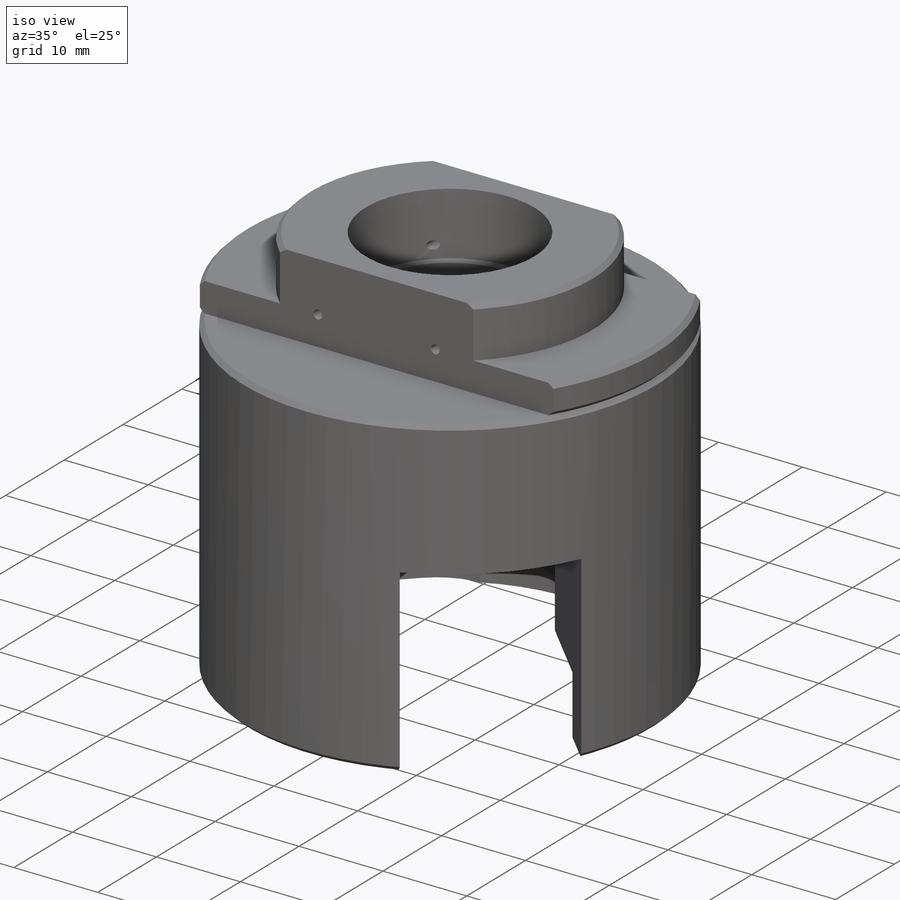
[diagram: iso view]
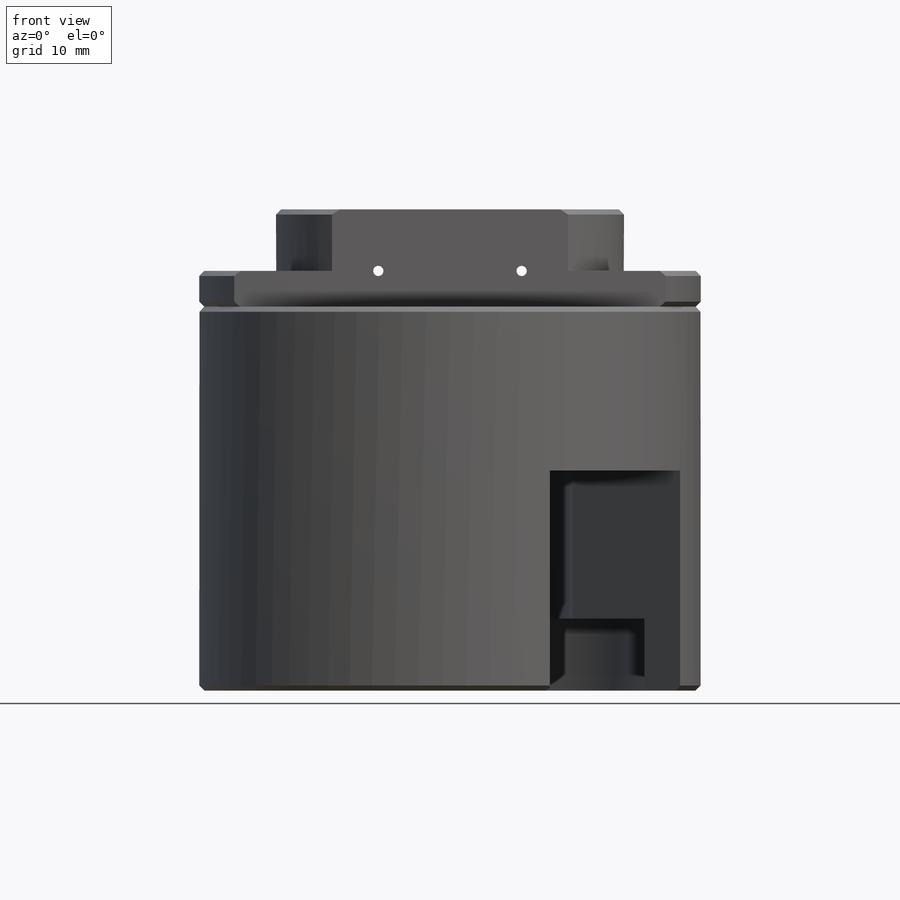
[diagram: front view]
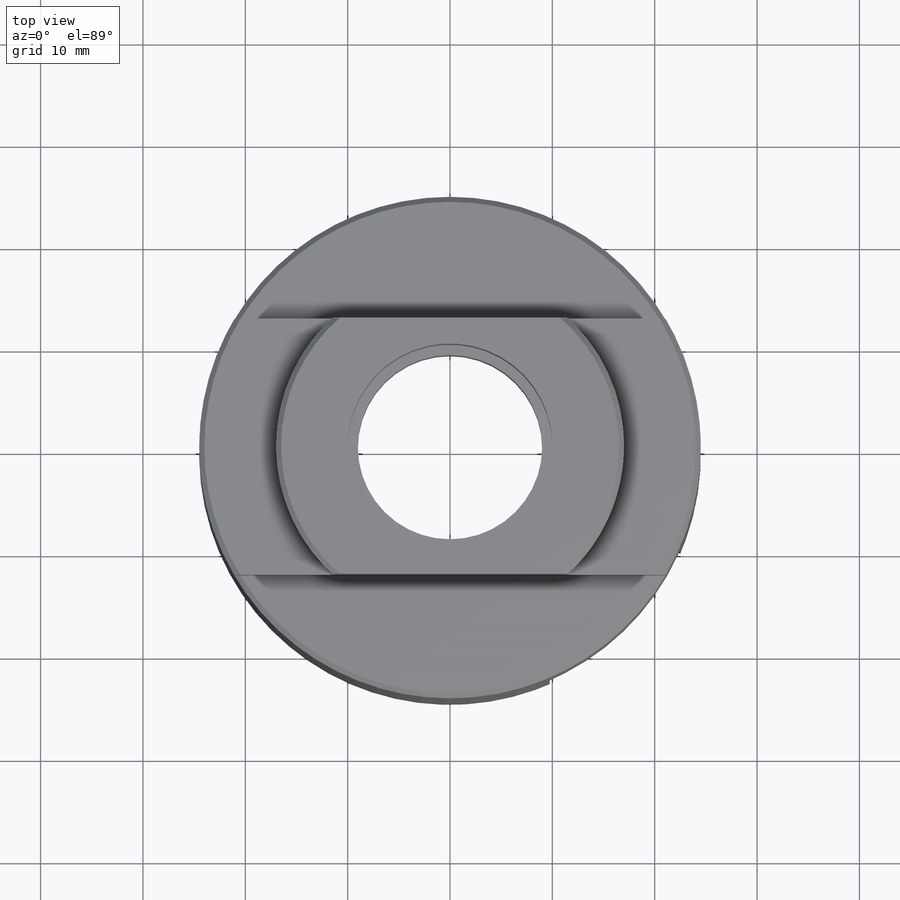
[diagram: top view]
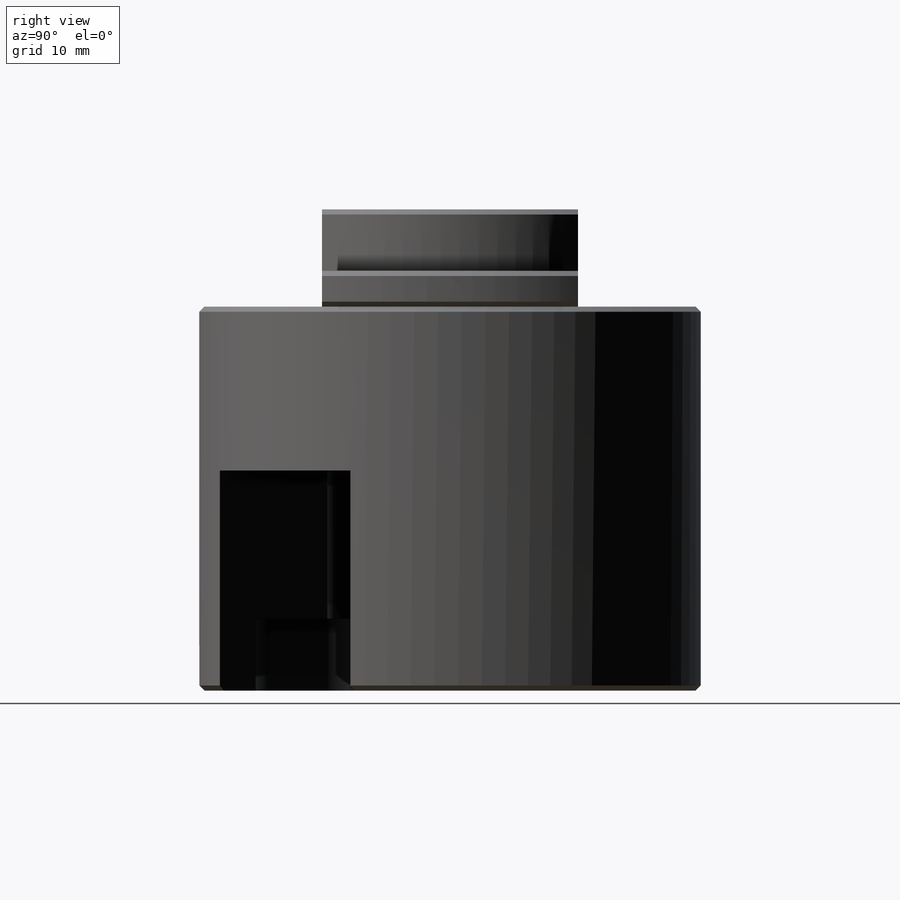
[diagram: right view]
SOLIDWORKS PART (.sldprt)
format: sldprt  version: not decoded by parser v0  size: 499,712 bytes
history: native  units: mm
features: sketch x15, cut_extrude x6, plane x3, hole x3, extrude x2, cut_revolve x2, material x1, chamfer x1 (+13 scaffold rows collapsed)
feature tree (46):
  scaffold x13  (default folders/planes/origin — collapsed)
  material  "Акрил (Средняя-высокая ударопрочность)"
  plane  "Спереди"
  plane  "Сверху"
  plane  "Справа"
  sketch  "Эскиз1"  dims[D1=49.0mm]
  extrude  "Бобышка-Вытянуть1"  Depth=47mm
  sketch  "Эскиз2"  dims[D1=25.0mm]
  cut_extrude  "Вырез-Вытянуть2"  Depth=9.5mm
  sketch  "Эскиз4"  dims[D1=20.0mm]
  cut_extrude  "Вырез-Вытянуть4"  Depth=7.5mm
  sketch  "Эскиз5"  dims[D1=34.0mm]
  cut_extrude  "Вырез-Вытянуть5"  Depth=3.5mm Material_Int=0mm Material_Ext=0mm Surface=0mm
  extrude  "OptisFaceAttribut_1"  Depth=0mm Surface=0mm Material_Int=0mm Material_Ext=0mm
  sketch  "Эскиз6"  dims[D1=18.0mm]
  cut_extrude  "Вырез-Вытянуть6"  [1 undecoded]
  sketch  "Эскиз7"  dims[c1.D1=5.0mm c1.D2=24.0mm c1.D3=32.0mm c1.D4=26.0mm c1.D5=5.5mm c1.D6=6.0mm c2.D4=6.0mm c2.D3=40.0mm c3.D4=25.0mm c3.D1=32.5mm]
  cut_revolve  "Вырез-Повернуть1"  Angle=360deg
  sketch  "Эскиз13"  dims[c1.D5=8.0mm c1.D6=24.0mm c1.D1=~4.807733mm c2.D1=45.0deg c2.D2=22.0mm c2.D3=17.0mm c2.D4=10.0mm c3.D1=8.5mm c3.D2=21.0mm c3.D4=~4.81966mm c4.D4=45.0deg c4.D6=14.0mm c4.D7=30.0mm c5.D6=13.0mm c5.D1=22.0mm]
  cut_extrude  "Вырез-Вытянуть10"  Depth=10mm
  sketch  "Эскиз14"  dims[D1=18.0mm D2=30.0mm]
  cut_extrude  "Вырез-Вытянуть11"  Depth=18mm
  hole  "Отверстие обработанное метчиком #2-561"  [1 undecoded]
  sketch  "Эскиз16"  dims[c1.D1=16.0mm c1.D2=16.0mm c1.D7=16.0mm c2.D1=17.0mm c2.D2=~12.216258mm c3.D1=6.5mm c3.D2=13.5mm c3.D3=3.0mm c3.D4=33.0mm c3.D5=3.0mm c3.D6=9.0mm c4.D1=12.0mm c4.D2=12.0mm c4.D3=12.0mm c4.D4=12.0mm c4.D5=7.5mm c4.D6=~15.381183mm c5.D6=90.0deg c6.D6=15.5mm]
  sketch  "Эскиз15"  dims[hole-wizard template sketch: 39 standard entries collapsed; hole parameters kept: c13.Диаметр сверла=1.778mm c13.Глубина сверла=10.2733mm c13.Диаметр передней зенковки=2.54mm c13.D4=~33.297463mm c13.Угол передней зенковки=110.0deg c14.D5=~14.816244mm c14.Угол заточки сверла=118.0deg]
  hole  "Диаметр отверстия Ø2.2 (2.2)1"  [1 undecoded]
  sketch  "Эскиз19"  dims[D1=3.0mm D2=3.0mm D3=7.5mm D4=7.5mm D5=14.0mm D6=14.0mm D7=16.0mm D8=10.0mm]
  sketch  "Эскиз18"  dims[hole-wizard template sketch: 39 standard entries collapsed; hole parameters kept: c13.Диаметр отверстия=2.2mm c13.Глубина отверстия=1.5mm c13.Диаметр передней зенковки=2.4mm c13.D4=~33.297463mm c13.Угол передней зенковки=90.0deg c14.D5=~14.816244mm c14.Угол заточки сверла=118.0deg]
  hole  "Диаметр отверстия Ø1.0 (1)1"  [1 undecoded]
  sketch  "Эскиз22"  dims[D1=14.0mm D2=7.0mm D3=6.0mm]
  sketch  "Эскиз23"  dims[hole-wizard template sketch: 46 standard entries collapsed; hole parameters kept: c15.Диаметр сквозного отверстия=1.0mm c15.Глубина сквозного отверстия=25.0mm c15.Диаметр передней зенковки=1.05mm c15.D4=~3.666174mm c15.Угол передней зенковки=90.0deg c15.Диаметр задней зенковки=1.05mm c15.D6=~9.919017mm c15.Угол задней зенковки=90.0deg]
  sketch  "Эскиз24"  dims[c1.D1=~0.771524mm c2.D1=45.0deg c2.D2=0.707mm]
  cut_revolve  "Вырез-Повернуть2"  Angle=360deg
  chamfer  "Фаска1"  Distance=0.5mm Angle=45deg
decode coverage: 25 of 29 modeling features carry decoded parameters
note: ~ marks probable driven/reference dimensions
note: 4 parameter values undecoded
summary: no parameter record found for 4 features
note: suppression state not decoded; provenance and decode notes live in map.json
